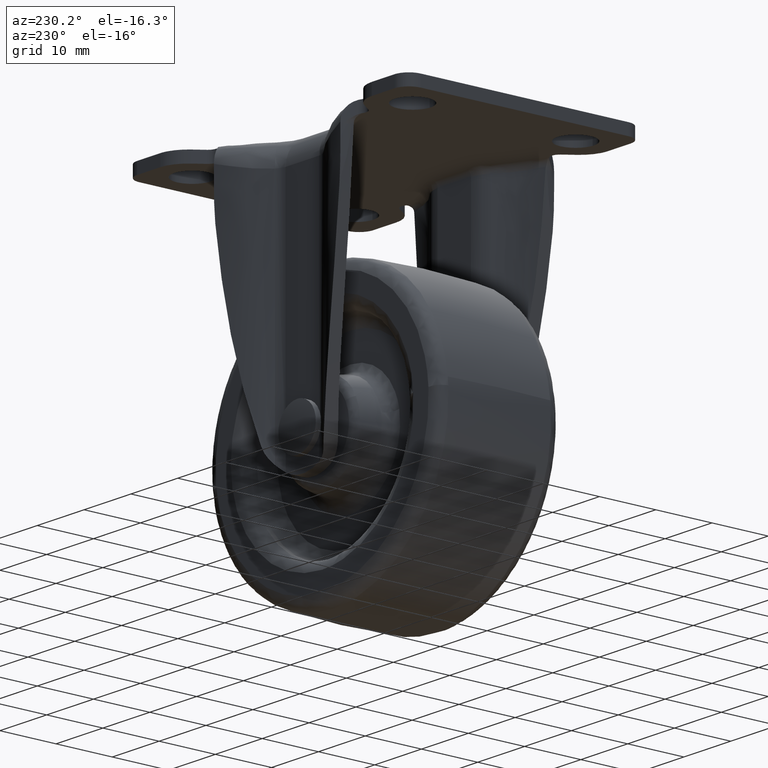
[diagram: clean part render]
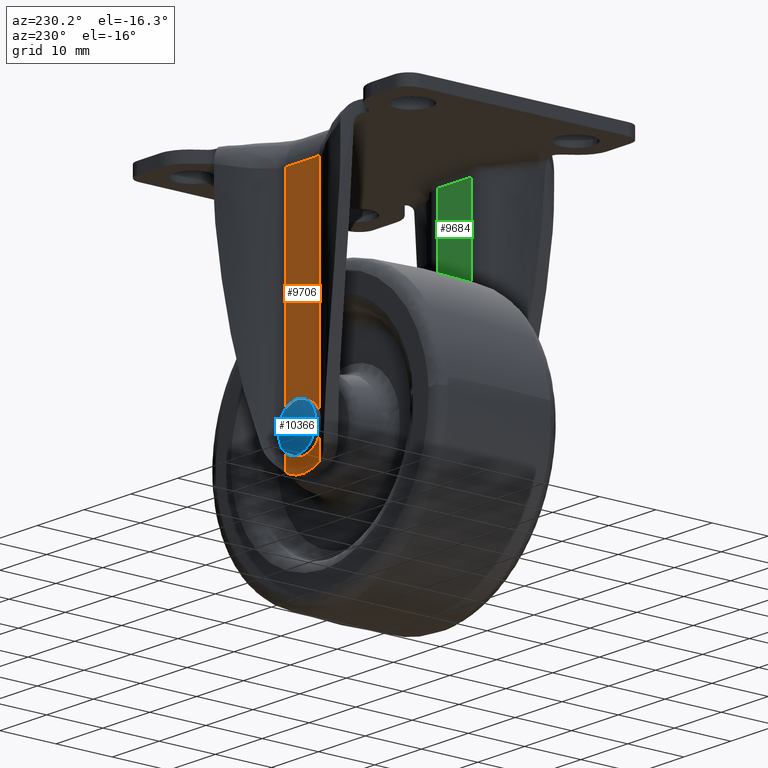
[diagram: same view with three faces highlighted in distinct colors, each labeled with its STEP entity id]
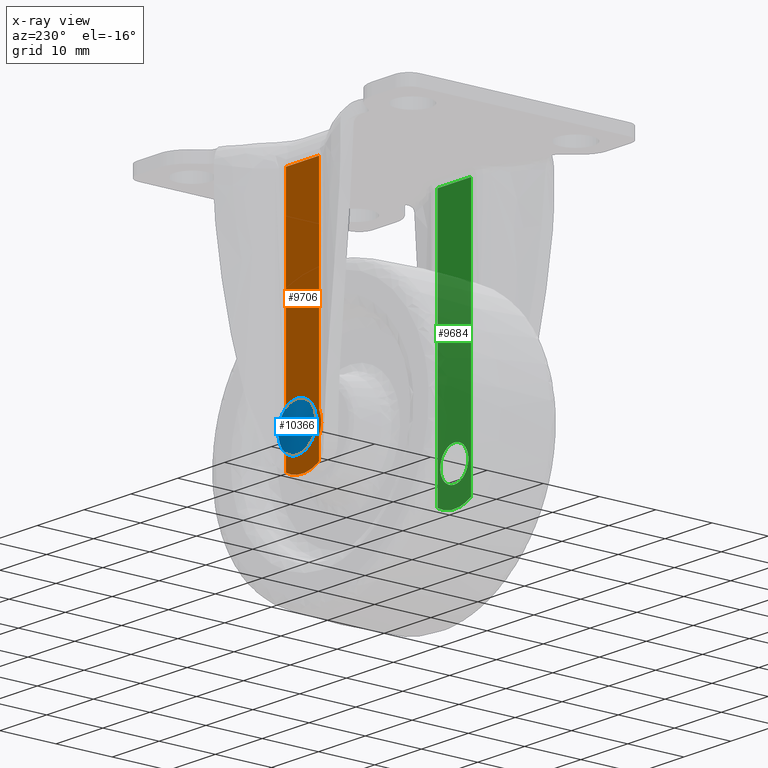
[diagram: x-ray of the same camera — body ghosted, the three highlighted faces saturated]
A machine part, auxiliary view with three faces highlighted in distinct colors.
The next image is the same camera in x-ray (body ghosted, the three faces saturated) — at least one of them is partly hidden behind the body in this view.
Their STEP definitions:

[orange] entity #9706 — the highlighted face is a freeform B-spline surface patch.
#3788=CARTESIAN_POINT('',(-2.979028579088143,14.500000000000000,-43.354102703994293));
#3789=VERTEX_POINT('',#3788);
#3795=CARTESIAN_POINT('',(0.0,14.500000000000000,-39.999999999999993));
#3796=VERTEX_POINT('',#3795);
#3797=CARTESIAN_POINT('',(-2.979028579088144,14.499999999999996,-43.354102703994286));
#3798=CARTESIAN_POINT('',(-3.0,14.499999999999996,-43.177672358980004));
#3799=CARTESIAN_POINT('',(-3.0,14.500000000000000,-43.0));
#3800=CARTESIAN_POINT('',(-3.0,14.500000000000000,-39.999999999999993));
#3801=CARTESIAN_POINT('',(0.0,14.500000000000000,-39.999999999999993));
#3809=(BOUNDED_CURVE()B_SPLINE_CURVE(2,(#3797,#3798,#3799,#3800,#3801),.UNSPECIFIED.,.F.,.U.)B_SPLINE_CURVE_WITH_KNOTS((3,2,3),(0.229562473512918,0.250000000000000,0.500000000000000),.UNSPECIFIED.)CURVE()GEOMETRIC_REPRESENTATION_ITEM()RATIONAL_B_SPLINE_CURVE((0.956026754182543,0.976055948330454,1.0,0.707106781186548,1.0))REPRESENTATION_ITEM(''));
#3810=EDGE_CURVE('',#3789,#3796,#3809,.T.);
#3812=CARTESIAN_POINT('',(2.994404395256039,14.500000000000000,-42.816854381239096));
#3813=VERTEX_POINT('',#3812);
#3814=CARTESIAN_POINT('',(0.0,14.500000000000000,-39.999999999999993));
#3815=CARTESIAN_POINT('',(2.822118200421839,14.500000000000002,-39.999999999999993));
#3816=CARTESIAN_POINT('',(2.994404395256038,14.500000000000005,-42.816854381239096));
#3824=(BOUNDED_CURVE()B_SPLINE_CURVE(2,(#3814,#3815,#3816),.UNSPECIFIED.,.F.,.U.)B_SPLINE_CURVE_WITH_KNOTS((3,3),(0.500000000000000,0.739332962223950),.UNSPECIFIED.)CURVE()GEOMETRIC_REPRESENTATION_ITEM()RATIONAL_B_SPLINE_CURVE((1.0,0.719603993304275,0.976072041634586))REPRESENTATION_ITEM(''));
#3825=EDGE_CURVE('',#3796,#3813,#3824,.T.);
#3899=CARTESIAN_POINT('',(0.0,14.500000000000000,-46.0));
#3900=VERTEX_POINT('',#3899);
#3901=CARTESIAN_POINT('',(2.994404395256039,14.499999999999996,-42.816854381239089));
#3902=CARTESIAN_POINT('',(3.0,14.500000000000004,-42.908341709947457));
#3903=CARTESIAN_POINT('',(3.0,14.500000000000000,-43.0));
#3904=CARTESIAN_POINT('',(3.0,14.500000000000000,-46.000000000000007));
#3905=CARTESIAN_POINT('',(0.0,14.500000000000000,-46.0));
#3913=(BOUNDED_CURVE()B_SPLINE_CURVE(2,(#3901,#3902,#3903,#3904,#3905),.UNSPECIFIED.,.F.,.U.)B_SPLINE_CURVE_WITH_KNOTS((3,2,3),(0.739332962223951,0.750000000000000,1.0),.UNSPECIFIED.)CURVE()GEOMETRIC_REPRESENTATION_ITEM()RATIONAL_B_SPLINE_CURVE((0.976072041634588,0.987502787882274,1.0,0.707106781186548,1.0))REPRESENTATION_ITEM(''));
#3914=EDGE_CURVE('',#3813,#3900,#3913,.T.);
#3916=CARTESIAN_POINT('',(0.0,14.500000000000000,-46.0));
#3917=CARTESIAN_POINT('',(-2.664523577810823,14.500000000000000,-45.999999999999993));
#3918=CARTESIAN_POINT('',(-2.979028579088144,14.500000000000002,-43.354102703994293));
#3926=(BOUNDED_CURVE()B_SPLINE_CURVE(2,(#3916,#3917,#3918),.UNSPECIFIED.,.F.,.U.)B_SPLINE_CURVE_WITH_KNOTS((3,3),(0.0,0.229562473512918),.UNSPECIFIED.)CURVE()GEOMETRIC_REPRESENTATION_ITEM()RATIONAL_B_SPLINE_CURVE((1.0,0.731050832856094,0.956026754182543))REPRESENTATION_ITEM(''));
#3927=EDGE_CURVE('',#3900,#3789,#3926,.T.);
#5845=CARTESIAN_POINT('',(-3.556740999999820,14.500000000000000,-44.830189459843147));
#5846=VERTEX_POINT('',#5845);
#5847=CARTESIAN_POINT('',(-3.556740999999820,14.500000000000000,-41.169810540157251));
#5848=VERTEX_POINT('',#5847);
#5871=CARTESIAN_POINT('',(-3.556740999999743,14.500000000000000,-44.830189459843112));
#5872=CARTESIAN_POINT('',(-4.498500171927273,14.500000000000000,-43.000000000000213));
#5873=CARTESIAN_POINT('',(-3.556740999999910,14.500000000000000,-41.169810540157208));
#5881=(BOUNDED_CURVE()B_SPLINE_CURVE(2,(#5871,#5872,#5873),.UNSPECIFIED.,.F.,.U.)CURVE()GEOMETRIC_REPRESENTATION_ITEM()QUASI_UNIFORM_CURVE()RATIONAL_B_SPLINE_CURVE((1.0,0.889185249999957,1.0))REPRESENTATION_ITEM(''));
#5882=EDGE_CURVE('',#5846,#5848,#5881,.T.);
#5901=CARTESIAN_POINT('',(3.556742000000000,14.500000000000000,-41.169812483531999));
#5902=VERTEX_POINT('',#5901);
#5903=CARTESIAN_POINT('',(3.556742000000000,14.500000000000000,-44.830187516468413));
#5904=VERTEX_POINT('',#5903);
#5932=CARTESIAN_POINT('',(3.556742000000079,14.500000000000000,-41.169812483531963));
#5933=CARTESIAN_POINT('',(4.498498907145928,14.499999999999996,-43.000000000000206));
#5934=CARTESIAN_POINT('',(3.556741999999912,14.500000000000000,-44.830187516468357));
#5942=(BOUNDED_CURVE()B_SPLINE_CURVE(2,(#5932,#5933,#5934),.UNSPECIFIED.,.F.,.U.)CURVE()GEOMETRIC_REPRESENTATION_ITEM()QUASI_UNIFORM_CURVE()RATIONAL_B_SPLINE_CURVE((1.0,0.889185499999999,1.0))REPRESENTATION_ITEM(''));
#5943=EDGE_CURVE('',#5902,#5904,#5942,.T.);
#6780=CARTESIAN_POINT('',(3.556742000000000,14.500000000000000,-5.0));
#6781=VERTEX_POINT('',#6780);
#6841=CARTESIAN_POINT('',(-3.556740999999820,14.500000000000000,-5.0));
#6842=VERTEX_POINT('',#6841);
#6864=CARTESIAN_POINT('',(-3.556740999999820,14.500000000000000,-5.0));
#6865=CARTESIAN_POINT('',(3.556742000000000,14.500000000000000,-5.0));
#6866=QUASI_UNIFORM_CURVE('',1,(#6864,#6865),.UNSPECIFIED.,.F.,.U.);
#6867=EDGE_CURVE('',#6842,#6781,#6866,.T.);
#8053=CARTESIAN_POINT('',(-3.556740999999820,14.500000000000000,-48.529061934884602));
#8054=VERTEX_POINT('',#8053);
#8074=CARTESIAN_POINT('',(3.556742000000000,14.500000000000000,-48.529061344952012));
#8075=VERTEX_POINT('',#8074);
#8076=CARTESIAN_POINT('',(-3.556740999999836,14.500000000000000,-48.529061934884623));
#8077=CARTESIAN_POINT('',(0.000000674010385,14.500000000000002,-50.627300117346792));
#8078=CARTESIAN_POINT('',(3.556741999999983,14.500000000000000,-48.529061344951977));
#8086=(BOUNDED_CURVE()B_SPLINE_CURVE(2,(#8076,#8077,#8078),.UNSPECIFIED.,.F.,.U.)CURVE()GEOMETRIC_REPRESENTATION_ITEM()QUASI_UNIFORM_CURVE()RATIONAL_B_SPLINE_CURVE((1.0,0.861294586857817,1.0))REPRESENTATION_ITEM(''));
#8087=EDGE_CURVE('',#8054,#8075,#8086,.T.);
#9219=CARTESIAN_POINT('',(3.556742000000000,14.500000000000000,-41.169812483531999));
#9220=CARTESIAN_POINT('',(3.556742000000000,14.500000000000000,-5.0));
#9221=QUASI_UNIFORM_CURVE('',1,(#9219,#9220),.UNSPECIFIED.,.F.,.U.);
#9222=EDGE_CURVE('',#5902,#6781,#9221,.T.);
#9227=CARTESIAN_POINT('',(3.556742000000000,14.500000000000000,-48.529061344952012));
#9228=CARTESIAN_POINT('',(3.556742000000000,14.500000000000000,-44.830187516468413));
#9229=QUASI_UNIFORM_CURVE('',1,(#9227,#9228),.UNSPECIFIED.,.F.,.U.);
#9230=EDGE_CURVE('',#8075,#5904,#9229,.T.);
#9250=CARTESIAN_POINT('',(-3.556740999999820,14.500000000000000,-48.529061934884602));
#9251=CARTESIAN_POINT('',(-3.556740999999820,14.500000000000000,-44.830189459843147));
#9252=QUASI_UNIFORM_CURVE('',1,(#9250,#9251),.UNSPECIFIED.,.F.,.U.);
#9253=EDGE_CURVE('',#8054,#5846,#9252,.T.);
#9262=CARTESIAN_POINT('',(-3.556740999999820,14.500000000000000,-41.169810540157251));
#9263=CARTESIAN_POINT('',(-3.556740999999820,14.500000000000000,-5.0));
#9264=QUASI_UNIFORM_CURVE('',1,(#9262,#9263),.UNSPECIFIED.,.F.,.U.);
#9265=EDGE_CURVE('',#5848,#6842,#9264,.T.);
#9685=CARTESIAN_POINT('',(-4.399599984494399,14.500000000000000,-2.777225109630558));
#9686=CARTESIAN_POINT('',(-4.399599984494399,14.500000000000000,-51.722775615865842));
#9687=CARTESIAN_POINT('',(4.399600199071121,14.500000000000000,-2.777225109630558));
#9688=CARTESIAN_POINT('',(4.399600199071121,14.500000000000000,-51.722775615865842));
#9689=B_SPLINE_SURFACE_WITH_KNOTS('',1,1,((#9685,#9687),(#9686,#9688)),.UNSPECIFIED.,.F.,.F.,.U.,(2,2),(2,2),(0.0,48.945550506235293),(0.0,8.799200183565521),.UNSPECIFIED.);
#9690=ORIENTED_EDGE('',*,*,#9253,.T.);
#9691=ORIENTED_EDGE('',*,*,#5882,.T.);
#9692=ORIENTED_EDGE('',*,*,#9265,.T.);
#9693=ORIENTED_EDGE('',*,*,#6867,.T.);
#9694=ORIENTED_EDGE('',*,*,#9222,.F.);
#9695=ORIENTED_EDGE('',*,*,#5943,.T.);
#9696=ORIENTED_EDGE('',*,*,#9230,.F.);
#9697=ORIENTED_EDGE('',*,*,#8087,.F.);
#9698=EDGE_LOOP('',(#9690,#9691,#9692,#9693,#9694,#9695,#9696,#9697));
#9699=FACE_OUTER_BOUND('',#9698,.T.);
#9700=ORIENTED_EDGE('',*,*,#3825,.F.);
#9701=ORIENTED_EDGE('',*,*,#3810,.F.);
#9702=ORIENTED_EDGE('',*,*,#3927,.F.);
#9703=ORIENTED_EDGE('',*,*,#3914,.F.);
#9704=EDGE_LOOP('',(#9700,#9701,#9702,#9703));
#9705=FACE_BOUND('',#9704,.T.);
#9706=ADVANCED_FACE('',(#9699,#9705),#9689,.F.);

[blue] entity #10366 — the highlighted face is a freeform B-spline surface patch.
#9796=CARTESIAN_POINT('',(3.972038105450990,15.456832000000000,-42.527863061342053));
#9797=VERTEX_POINT('',#9796);
#9798=CARTESIAN_POINT('',(0.0,15.456832000000000,-47.0));
#9799=VERTEX_POINT('',#9798);
#9800=CARTESIAN_POINT('',(3.972038105450990,15.456832000000002,-42.527863061342053));
#9801=CARTESIAN_POINT('',(4.0,15.456831999999997,-42.763103521361117));
#9802=CARTESIAN_POINT('',(4.0,15.456832000000000,-43.0));
#9803=CARTESIAN_POINT('',(4.000000000000000,15.456832000000006,-47.000000000000007));
#9804=CARTESIAN_POINT('',(0.0,15.456832000000000,-47.0));
#9812=(BOUNDED_CURVE()B_SPLINE_CURVE(2,(#9800,#9801,#9802,#9803,#9804),.UNSPECIFIED.,.F.,.U.)B_SPLINE_CURVE_WITH_KNOTS((3,2,3),(0.229562473513013,0.250000000000000,0.500000000000000),.UNSPECIFIED.)CURVE()GEOMETRIC_REPRESENTATION_ITEM()RATIONAL_B_SPLINE_CURVE((0.956026754182728,0.976055948330564,1.0,0.707106781186548,1.0))REPRESENTATION_ITEM(''));
#9813=EDGE_CURVE('',#9797,#9799,#9812,.T.);
#9854=CARTESIAN_POINT('',(-3.992539644860258,15.456831999999110,-43.244186781305842));
#9855=VERTEX_POINT('',#9854);
#9861=CARTESIAN_POINT('',(0.0,15.456832000000000,-47.0));
#9862=CARTESIAN_POINT('',(-3.762831233019646,15.456832000000000,-47.000000000000021));
#9863=CARTESIAN_POINT('',(-3.992539644860258,15.456831999999110,-43.244186781305835));
#9871=(BOUNDED_CURVE()B_SPLINE_CURVE(2,(#9861,#9862,#9863),.UNSPECIFIED.,.F.,.U.)B_SPLINE_CURVE_WITH_KNOTS((3,3),(0.500000000000000,0.739333281048922),.UNSPECIFIED.)CURVE()GEOMETRIC_REPRESENTATION_ITEM()RATIONAL_B_SPLINE_CURVE((1.0,0.719603619777586,0.976072724938143))REPRESENTATION_ITEM(''));
#9872=EDGE_CURVE('',#9799,#9855,#9871,.T.);
#9895=CARTESIAN_POINT('',(0.0,15.456832000000000,-38.999999999999993));
#9896=VERTEX_POINT('',#9895);
#9897=CARTESIAN_POINT('',(0.0,15.456832000000000,-38.999999999999993));
#9898=CARTESIAN_POINT('',(3.552698103749760,15.456832000000007,-39.0));
#9899=CARTESIAN_POINT('',(3.972038105450990,15.456832000000004,-42.527863061342046));
#9907=(BOUNDED_CURVE()B_SPLINE_CURVE(2,(#9897,#9898,#9899),.UNSPECIFIED.,.F.,.U.)B_SPLINE_CURVE_WITH_KNOTS((3,3),(0.0,0.229562473513013),.UNSPECIFIED.)CURVE()GEOMETRIC_REPRESENTATION_ITEM()RATIONAL_B_SPLINE_CURVE((1.0,0.731050832855983,0.956026754182728))REPRESENTATION_ITEM(''));
#9908=EDGE_CURVE('',#9896,#9797,#9907,.T.);
#9910=CARTESIAN_POINT('',(-3.992539644860258,15.456831999999110,-43.244186781305835));
#9911=CARTESIAN_POINT('',(-4.0,15.456832000000004,-43.122207354436128));
#9912=CARTESIAN_POINT('',(-4.0,15.456832000000000,-43.0));
#9913=CARTESIAN_POINT('',(-4.000000000000000,15.456832000000006,-38.999999999999993));
#9914=CARTESIAN_POINT('',(0.0,15.456832000000000,-38.999999999999993));
#9922=(BOUNDED_CURVE()B_SPLINE_CURVE(2,(#9910,#9911,#9912,#9913,#9914),.UNSPECIFIED.,.F.,.U.)B_SPLINE_CURVE_WITH_KNOTS((3,2,3),(0.739333281048922,0.750000000000000,1.0),.UNSPECIFIED.)CURVE()GEOMETRIC_REPRESENTATION_ITEM()RATIONAL_B_SPLINE_CURVE((0.976072724938143,0.987503161408961,1.0,0.707106781186548,1.0))REPRESENTATION_ITEM(''));
#9923=EDGE_CURVE('',#9855,#9896,#9922,.T.);
#10336=CARTESIAN_POINT('',(-4.289264480973860,14.718731984640547,-38.710640730149038));
#10337=CARTESIAN_POINT('',(-2.191427982701790,15.345372931894868,-38.617047177431886));
#10338=CARTESIAN_POINT('',(2.191440074978175,15.345372931894868,-38.617047177431886));
#10339=CARTESIAN_POINT('',(4.289287138264023,14.718725216702857,-38.710641740991576));
#10340=CARTESIAN_POINT('',(-4.382860192288986,15.345401232968307,-40.808521475226563));
#10341=CARTESIAN_POINT('',(-2.240313647866413,16.0,-40.759636843222211));
#10342=CARTESIAN_POINT('',(2.240326009893381,16.0,-40.759636843222211));
#10343=CARTESIAN_POINT('',(4.382883321443685,15.345394166442791,-40.808522002945992));
#10344=CARTESIAN_POINT('',(-4.382860192288986,15.345401232968307,-45.191478755102786));
#10345=CARTESIAN_POINT('',(-2.240313647866413,16.0,-45.240363392244973));
#10346=CARTESIAN_POINT('',(2.240326009893381,16.0,-45.240363392244973));
#10347=CARTESIAN_POINT('',(4.382883321443685,15.345394166442791,-45.191478227383264));
#10348=CARTESIAN_POINT('',(-4.289264461719762,14.718731855724913,-47.289359701417716));
#10349=CARTESIAN_POINT('',(-2.191427972650036,15.345372797292006,-47.382953263122310));
#10350=CARTESIAN_POINT('',(2.191440064926366,15.345372797292006,-47.382953263122310));
#10351=CARTESIAN_POINT('',(4.289287119009832,14.718725087787297,-47.289358690575092));
#10359=(BOUNDED_SURFACE()B_SPLINE_SURFACE(2,2,((#10336,#10340,#10344,#10348),(#10337,#10341,#10345,#10349),(#10338,#10342,#10346,#10350),(#10339,#10343,#10347,#10351)),.UNSPECIFIED.,.F.,.F.,.U.)B_SPLINE_SURFACE_WITH_KNOTS((3,1,3),(3,1,3),(0.0,4.431203462629284,8.862431376592314),(0.0,4.431301388229922,8.862603242199535),.UNSPECIFIED.)GEOMETRIC_REPRESENTATION_ITEM()RATIONAL_B_SPLINE_SURFACE(((1.044614365844728,1.022306689959184,1.022306689959184,1.044614370533902),(1.022307675885544,1.0,1.0,1.022307680574717),(1.022307675885544,1.0,1.0,1.022307680574717),(1.044614612021565,1.022306936136021,1.022306936136021,1.044614616710738)))REPRESENTATION_ITEM('')SURFACE());
#10360=ORIENTED_EDGE('',*,*,#9908,.T.);
#10361=ORIENTED_EDGE('',*,*,#9813,.T.);
#10362=ORIENTED_EDGE('',*,*,#9872,.T.);
#10363=ORIENTED_EDGE('',*,*,#9923,.T.);
#10364=EDGE_LOOP('',(#10360,#10361,#10362,#10363));
#10365=FACE_OUTER_BOUND('',#10364,.T.);
#10366=ADVANCED_FACE('',(#10365),#10359,.T.);

[green] entity #9684 — the highlighted face is a freeform B-spline surface patch.
#3583=CARTESIAN_POINT('',(0.0,-12.500000000000000,-39.999999999999993));
#3584=VERTEX_POINT('',#3583);
#3585=CARTESIAN_POINT('',(-2.990752001187938,-12.500000000000000,-42.764622712671027));
#3586=VERTEX_POINT('',#3585);
#3587=CARTESIAN_POINT('',(0.0,-12.500000000000000,-39.999999999999993));
#3588=CARTESIAN_POINT('',(-2.773171474704091,-12.499999999999998,-39.999999999999993));
#3589=CARTESIAN_POINT('',(-2.990752001187937,-12.499999999999996,-42.764622712671034));
#3597=(BOUNDED_CURVE()B_SPLINE_CURVE(2,(#3587,#3588,#3589),.UNSPECIFIED.,.F.,.U.)B_SPLINE_CURVE_WITH_KNOTS((3,3),(0.0,0.236331300616096),.UNSPECIFIED.)CURVE()GEOMETRIC_REPRESENTATION_ITEM()RATIONAL_B_SPLINE_CURVE((1.0,0.723120658624729,0.969723356137023))REPRESENTATION_ITEM(''));
#3598=EDGE_CURVE('',#3584,#3586,#3597,.T.);
#3600=CARTESIAN_POINT('',(2.990752001187938,-12.500000000000000,-43.235377287328973));
#3601=VERTEX_POINT('',#3600);
#3602=CARTESIAN_POINT('',(2.990752001187938,-12.500000000000000,-43.235377287328973));
#3603=CARTESIAN_POINT('',(3.000000000000000,-12.500000000000005,-43.117870321169114));
#3604=CARTESIAN_POINT('',(3.0,-12.500000000000000,-43.0));
#3605=CARTESIAN_POINT('',(3.0,-12.500000000000000,-39.999999999999993));
#3606=CARTESIAN_POINT('',(0.0,-12.500000000000000,-39.999999999999993));
#3614=(BOUNDED_CURVE()B_SPLINE_CURVE(2,(#3602,#3603,#3604,#3605,#3606),.UNSPECIFIED.,.F.,.U.)B_SPLINE_CURVE_WITH_KNOTS((3,2,3),(0.736331300616095,0.750000000000000,1.0),.UNSPECIFIED.)CURVE()GEOMETRIC_REPRESENTATION_ITEM()RATIONAL_B_SPLINE_CURVE((0.969723356137023,0.983986122561819,1.0,0.707106781186548,1.0))REPRESENTATION_ITEM(''));
#3615=EDGE_CURVE('',#3601,#3584,#3614,.T.);
#3682=CARTESIAN_POINT('',(0.0,-12.500000000000000,-46.0));
#3683=VERTEX_POINT('',#3682);
#3684=CARTESIAN_POINT('',(-2.990752001187938,-12.499999999999998,-42.764622712671034));
#3685=CARTESIAN_POINT('',(-3.000000000000000,-12.500000000000004,-42.882129678830879));
#3686=CARTESIAN_POINT('',(-3.0,-12.500000000000000,-43.0));
#3687=CARTESIAN_POINT('',(-3.0,-12.500000000000000,-46.000000000000007));
#3688=CARTESIAN_POINT('',(0.0,-12.500000000000000,-46.0));
#3696=(BOUNDED_CURVE()B_SPLINE_CURVE(2,(#3684,#3685,#3686,#3687,#3688),.UNSPECIFIED.,.F.,.U.)B_SPLINE_CURVE_WITH_KNOTS((3,2,3),(0.236331300616095,0.250000000000000,0.500000000000000),.UNSPECIFIED.)CURVE()GEOMETRIC_REPRESENTATION_ITEM()RATIONAL_B_SPLINE_CURVE((0.969723356137023,0.983986122561819,1.0,0.707106781186548,1.0))REPRESENTATION_ITEM(''));
#3697=EDGE_CURVE('',#3586,#3683,#3696,.T.);
#3731=CARTESIAN_POINT('',(0.0,-12.500000000000000,-46.0));
#3732=CARTESIAN_POINT('',(2.773171474704081,-12.499999999999998,-45.999999999999979));
#3733=CARTESIAN_POINT('',(2.990752001187938,-12.500000000000000,-43.235377287328980));
#3741=(BOUNDED_CURVE()B_SPLINE_CURVE(2,(#3731,#3732,#3733),.UNSPECIFIED.,.F.,.U.)B_SPLINE_CURVE_WITH_KNOTS((3,3),(0.500000000000000,0.736331300616095),.UNSPECIFIED.)CURVE()GEOMETRIC_REPRESENTATION_ITEM()RATIONAL_B_SPLINE_CURVE((1.0,0.723120658624729,0.969723356137022))REPRESENTATION_ITEM(''));
#3742=EDGE_CURVE('',#3683,#3601,#3741,.T.);
#7120=CARTESIAN_POINT('',(-3.556740999999820,-12.500000000000000,-3.0));
#7121=VERTEX_POINT('',#7120);
#7181=CARTESIAN_POINT('',(3.556742000000000,-12.500000000000000,-3.0));
#7182=VERTEX_POINT('',#7181);
#7196=CARTESIAN_POINT('',(-3.556740999999820,-12.500000000000000,-3.0));
#7197=CARTESIAN_POINT('',(3.556742000000000,-12.500000000000000,-3.0));
#7198=QUASI_UNIFORM_CURVE('',1,(#7196,#7197),.UNSPECIFIED.,.F.,.U.);
#7199=EDGE_CURVE('',#7121,#7182,#7198,.T.);
#7874=CARTESIAN_POINT('',(-3.556740999999820,-12.500000000000000,-48.529061934884702));
#7875=VERTEX_POINT('',#7874);
#7895=CARTESIAN_POINT('',(3.556742000000000,-12.500000000000000,-48.529061344952012));
#7896=VERTEX_POINT('',#7895);
#7897=CARTESIAN_POINT('',(3.556741999999982,-12.500000000000000,-48.529061344951977));
#7898=CARTESIAN_POINT('',(0.000000674010417,-12.500000000000002,-50.627300117346778));
#7899=CARTESIAN_POINT('',(-3.556740999999788,-12.500000000000000,-48.529061934884652));
#7907=(BOUNDED_CURVE()B_SPLINE_CURVE(2,(#7897,#7898,#7899),.UNSPECIFIED.,.F.,.U.)CURVE()GEOMETRIC_REPRESENTATION_ITEM()QUASI_UNIFORM_CURVE()RATIONAL_B_SPLINE_CURVE((1.0,0.861294586857819,1.0))REPRESENTATION_ITEM(''));
#7908=EDGE_CURVE('',#7896,#7875,#7907,.T.);
#9113=CARTESIAN_POINT('',(-3.556740999999820,-12.500000000000000,-48.529061934884702));
#9114=CARTESIAN_POINT('',(-3.556740999999820,-12.500000000000000,-3.0));
#9115=QUASI_UNIFORM_CURVE('',1,(#9113,#9114),.UNSPECIFIED.,.F.,.U.);
#9116=EDGE_CURVE('',#7875,#7121,#9115,.T.);
#9136=CARTESIAN_POINT('',(3.556742000000000,-12.500000000000000,-48.529061344952012));
#9137=CARTESIAN_POINT('',(3.556742000000000,-12.500000000000000,-3.0));
#9138=QUASI_UNIFORM_CURVE('',1,(#9136,#9137),.UNSPECIFIED.,.F.,.U.);
#9139=EDGE_CURVE('',#7896,#7182,#9138,.T.);
#9667=CARTESIAN_POINT('',(-3.912059462062500,-12.500000000000000,-51.822674854915377));
#9668=CARTESIAN_POINT('',(-3.912059462062500,-12.500000000000000,-0.677323845513423));
#9669=CARTESIAN_POINT('',(3.912060652861163,-12.500000000000000,-51.822674854915377));
#9670=CARTESIAN_POINT('',(3.912060652861163,-12.500000000000000,-0.677323845513423));
#9671=B_SPLINE_SURFACE_WITH_KNOTS('',1,1,((#9667,#9669),(#9668,#9670)),.UNSPECIFIED.,.F.,.F.,.U.,(2,2),(2,2),(0.0,51.145351009401963),(0.0,7.824120114923664),.UNSPECIFIED.);
#9672=ORIENTED_EDGE('',*,*,#9116,.T.);
#9673=ORIENTED_EDGE('',*,*,#7199,.T.);
#9674=ORIENTED_EDGE('',*,*,#9139,.F.);
#9675=ORIENTED_EDGE('',*,*,#7908,.T.);
#9676=EDGE_LOOP('',(#9672,#9673,#9674,#9675));
#9677=FACE_OUTER_BOUND('',#9676,.T.);
#9678=ORIENTED_EDGE('',*,*,#3742,.T.);
#9679=ORIENTED_EDGE('',*,*,#3615,.T.);
#9680=ORIENTED_EDGE('',*,*,#3598,.T.);
#9681=ORIENTED_EDGE('',*,*,#3697,.T.);
#9682=EDGE_LOOP('',(#9678,#9679,#9680,#9681));
#9683=FACE_BOUND('',#9682,.T.);
#9684=ADVANCED_FACE('',(#9677,#9683),#9671,.T.);